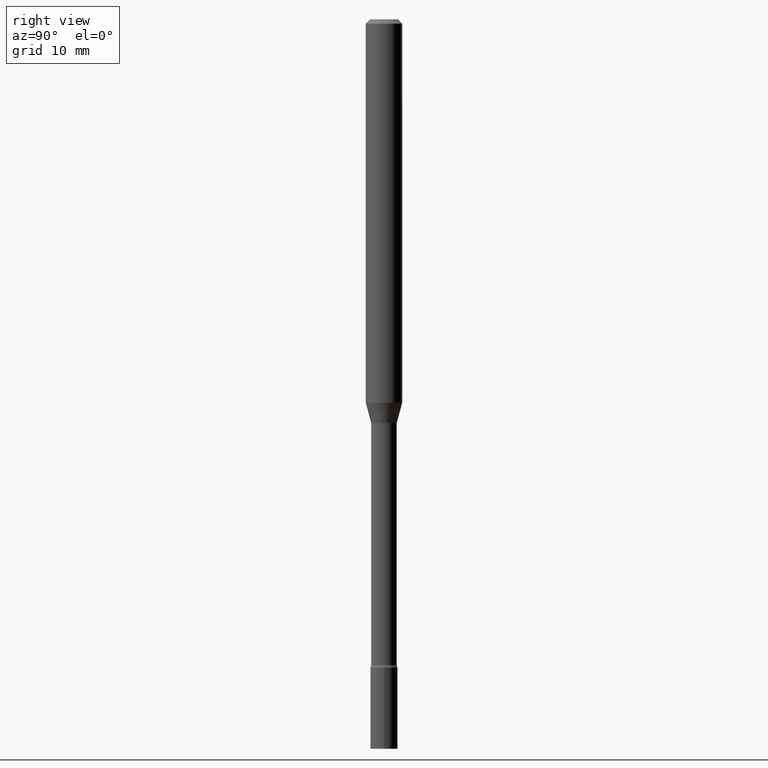
[diagram: clean part render]
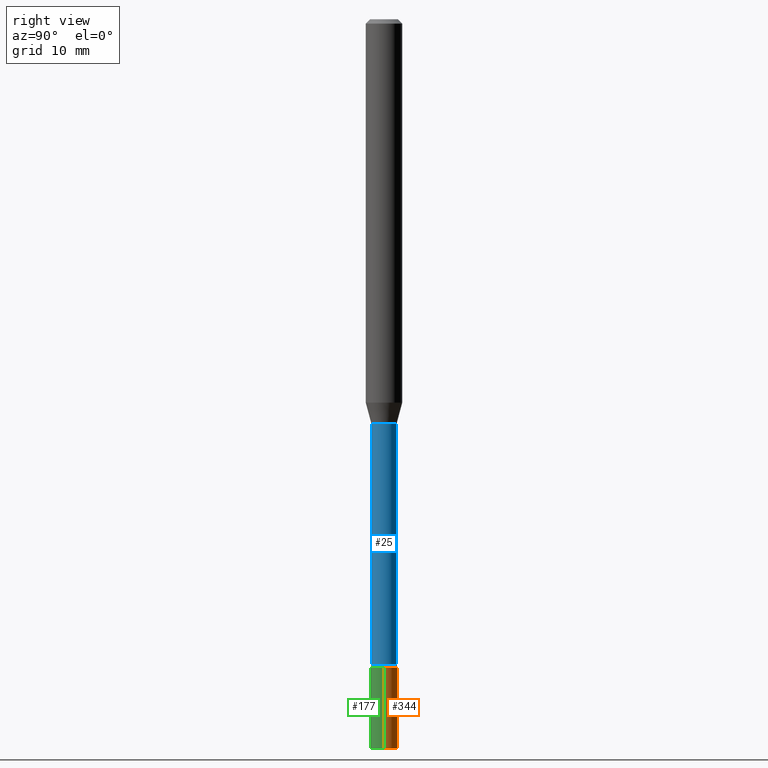
[diagram: same view with three faces highlighted in distinct colors, each labeled with its STEP entity id]
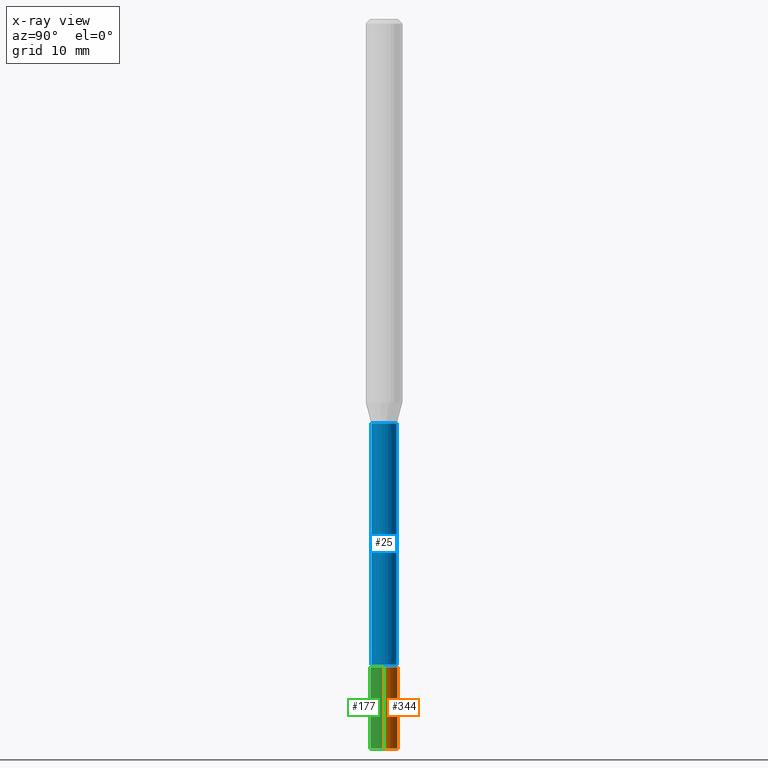
[diagram: x-ray of the same camera — body ghosted, the three highlighted faces saturated]
A machine part, right view with three faces highlighted in distinct colors.
The next image is the same camera in x-ray (body ghosted, the three faces saturated) — at least one of them is partly hidden behind the body in this view.
Their STEP definitions:

[orange] entity #344 — the highlighted cylindrical surface (edge-blend (fillet) strip) has radius 1.1811 mm, axis along (-0, 0, 1).
#15 = EDGE_LOOP ( 'NONE', ( #180, #26, #47, #132 ) ) ;
#21 = DIRECTION ( 'NONE',  ( -2.445468806185136597E-29, 3.491481338843145583E-15, 1.000000000000000000 ) ) ;
#26 = ORIENTED_EDGE ( 'NONE', *, *, #204, .T. ) ;
#47 = ORIENTED_EDGE ( 'NONE', *, *, #279, .F. ) ;
#73 = EDGE_CURVE ( 'NONE', #130, #240, #370, .T. ) ;
#103 = CARTESIAN_POINT ( 'NONE',  ( 5.431386218537188310E-29, -7.754580053570626508E-15, -2.221000000000000085 ) ) ;
#122 = FACE_OUTER_BOUND ( 'NONE', #15, .T. ) ;
#130 = VERTEX_POINT ( 'NONE', #503 ) ;
#132 = ORIENTED_EDGE ( 'NONE', *, *, #440, .F. ) ;
#150 = CARTESIAN_POINT ( 'NONE',  ( 0.04649999999999999967, -3.247077645124114474E-16, 2.267422200745110326E-30 ) ) ;
#155 = VECTOR ( 'NONE', #362, 39.37007874015748143 ) ;
#159 = DIRECTION ( 'NONE',  ( -2.445468806185136877E-29, 3.491481338843145188E-15, 1.000000000000000000 ) ) ;
#167 = CIRCLE ( 'NONE', #363, 0.04649999999999999967 ) ;
#173 = VERTEX_POINT ( 'NONE', #455 ) ;
#180 = ORIENTED_EDGE ( 'NONE', *, *, #73, .T. ) ;
#192 = VECTOR ( 'NONE', #159, 39.37007874015748143 ) ;
#198 = CARTESIAN_POINT ( 'NONE',  ( 0.000000000000000000, 0.000000000000000000, 0.000000000000000000 ) ) ;
#203 = DIRECTION ( 'NONE',  ( 1.000000000000000000, -6.982962677686267499E-15, 4.876176775795936353E-29 ) ) ;
#204 = EDGE_CURVE ( 'NONE', #240, #173, #338, .T. ) ;
#240 = VERTEX_POINT ( 'NONE', #328 ) ;
#261 = AXIS2_PLACEMENT_3D ( 'NONE', #264, #21, #438 ) ;
#264 = CARTESIAN_POINT ( 'NONE',  ( 6.113672015462842613E-29, -8.728703347107864943E-15, -2.500000000000000000 ) ) ;
#275 = LINE ( 'NONE', #150, #155 ) ;
#279 = EDGE_CURVE ( 'NONE', #461, #173, #167, .T. ) ;
#281 = DIRECTION ( 'NONE',  ( -2.445468806185136597E-29, 3.491481338843145583E-15, 1.000000000000000000 ) ) ;
#328 = CARTESIAN_POINT ( 'NONE',  ( -0.04649999999999999967, -7.911239328210799240E-15, -2.500000000000000000 ) ) ;
#338 = LINE ( 'NONE', #378, #192 ) ;
#344 = ADVANCED_FACE ( 'NONE', ( #122 ), #373, .T. ) ;
#362 = DIRECTION ( 'NONE',  ( -2.445468806185136877E-29, 3.491481338843145188E-15, 1.000000000000000000 ) ) ;
#363 = AXIS2_PLACEMENT_3D ( 'NONE', #103, #364, #379 ) ;
#364 = DIRECTION ( 'NONE',  ( -2.445468806185136597E-29, 3.491481338843145583E-15, 1.000000000000000000 ) ) ;
#370 = CIRCLE ( 'NONE', #261, 0.04649999999999999967 ) ;
#373 = CYLINDRICAL_SURFACE ( 'NONE', #457, 0.04649999999999999967 ) ;
#378 = CARTESIAN_POINT ( 'NONE',  ( -0.04649999999999999967, 3.304023721284465841E-16, -2.287304816968531530E-30 ) ) ;
#379 = DIRECTION ( 'NONE',  ( 1.000000000000000000, -6.982962677686260400E-15, 0.000000000000000000 ) ) ;
#438 = DIRECTION ( 'NONE',  ( 1.000000000000000000, -6.982962677686260400E-15, 0.000000000000000000 ) ) ;
#440 = EDGE_CURVE ( 'NONE', #130, #461, #275, .T. ) ;
#447 = CARTESIAN_POINT ( 'NONE',  ( 0.04649999999999999967, -8.079287818083037216E-15, -2.221000000000000085 ) ) ;
#455 = CARTESIAN_POINT ( 'NONE',  ( -0.04649999999999999967, -7.911239328210799240E-15, -2.221000000000000085 ) ) ;
#457 = AXIS2_PLACEMENT_3D ( 'NONE', #198, #281, #203 ) ;
#461 = VERTEX_POINT ( 'NONE', #447 ) ;
#503 = CARTESIAN_POINT ( 'NONE',  ( 0.04649999999999999967, -9.053411111620275650E-15, -2.500000000000000000 ) ) ;

[blue] entity #25 — the highlighted cylindrical surface (edge-blend (fillet) strip) has radius 1.11 mm, axis along (-0, 0, 1).
#6 = EDGE_CURVE ( 'NONE', #290, #146, #49, .T. ) ;
#7 = ORIENTED_EDGE ( 'NONE', *, *, #149, .F. ) ;
#11 = EDGE_LOOP ( 'NONE', ( #162, #64, #412, #7 ) ) ;
#25 = ADVANCED_FACE ( 'NONE', ( #28 ), #182, .T. ) ;
#28 = FACE_OUTER_BOUND ( 'NONE', #11, .T. ) ;
#46 = CARTESIAN_POINT ( 'NONE',  ( 3.105071755271642937E-16, 0.04370000000000007906, -1.525769678600814865E-16 ) ) ;
#49 = CIRCLE ( 'NONE', #435, 0.04370000000000000967 ) ;
#61 = DIRECTION ( 'NONE',  ( -6.982962677686265922E-15, -1.000000000000000000, 3.491463795425199426E-15 ) ) ;
#64 = ORIENTED_EDGE ( 'NONE', *, *, #342, .T. ) ;
#82 = CIRCLE ( 'NONE', #407, 0.04370000000000014845 ) ;
#85 = DIRECTION ( 'NONE',  ( -2.445481056688412626E-29, 3.491463795425199032E-15, 1.000000000000000000 ) ) ;
#109 = DIRECTION ( 'NONE',  ( -6.982962677686266711E-15, -1.000000000000000000, 6.251368406554376995E-15 ) ) ;
#118 = EDGE_CURVE ( 'NONE', #247, #489, #82, .T. ) ;
#124 = CARTESIAN_POINT ( 'NONE',  ( 3.105071755272183306E-16, 0.04369999999999516632, -1.385974787463811309 ) ) ;
#146 = VERTEX_POINT ( 'NONE', #124 ) ;
#149 = EDGE_CURVE ( 'NONE', #247, #290, #241, .T. ) ;
#160 = CARTESIAN_POINT ( 'NONE',  ( 3.204547738278597224E-16, 0.04369999999999241852, -2.212273030308292032 ) ) ;
#162 = ORIENTED_EDGE ( 'NONE', *, *, #118, .T. ) ;
#182 = CYLINDRICAL_SURFACE ( 'NONE', #392, 0.04370000000000007906 ) ;
#188 = CARTESIAN_POINT ( 'NONE',  ( 5.410071787841597970E-29, -7.724071190916995468E-15, -2.212273030308292032 ) ) ;
#196 = VECTOR ( 'NONE', #295, 39.37007874015748143 ) ;
#241 = LINE ( 'NONE', #418, #196 ) ;
#247 = VERTEX_POINT ( 'NONE', #375 ) ;
#283 = DIRECTION ( 'NONE',  ( -2.445481056688412626E-29, 3.491463795425199032E-15, 1.000000000000000000 ) ) ;
#290 = VERTEX_POINT ( 'NONE', #484 ) ;
#295 = DIRECTION ( 'NONE',  ( -2.445481056688412626E-29, 3.491463795425199032E-15, 1.000000000000000000 ) ) ;
#313 = DIRECTION ( 'NONE',  ( -2.445481056688412626E-29, 3.491463795425199032E-15, 1.000000000000000000 ) ) ;
#340 = LINE ( 'NONE', #46, #495 ) ;
#342 = EDGE_CURVE ( 'NONE', #489, #146, #340, .T. ) ;
#375 = CARTESIAN_POINT ( 'NONE',  ( -3.051554690148367184E-16, -0.04370000000000787144, -2.212273030308291588 ) ) ;
#392 = AXIS2_PLACEMENT_3D ( 'NONE', #511, #313, #61 ) ;
#400 = DIRECTION ( 'NONE',  ( -2.445481056688412626E-29, 3.491463795425199032E-15, 1.000000000000000000 ) ) ;
#407 = AXIS2_PLACEMENT_3D ( 'NONE', #188, #283, #492 ) ;
#412 = ORIENTED_EDGE ( 'NONE', *, *, #6, .F. ) ;
#418 = CARTESIAN_POINT ( 'NONE',  ( -3.051554690148903609E-16, -0.04370000000000007906, 1.525769678600814865E-16 ) ) ;
#435 = AXIS2_PLACEMENT_3D ( 'NONE', #470, #400, #109 ) ;
#470 = CARTESIAN_POINT ( 'NONE',  ( 3.389375087790498782E-29, -4.839080791802031638E-15, -1.385974787463811086 ) ) ;
#484 = CARTESIAN_POINT ( 'NONE',  ( -3.051554690148559962E-16, -0.04370000000000485302, -1.385974787463810864 ) ) ;
#489 = VERTEX_POINT ( 'NONE', #160 ) ;
#492 = DIRECTION ( 'NONE',  ( -6.982962677686264344E-15, -1.000000000000000000, 6.251368406554356484E-15 ) ) ;
#495 = VECTOR ( 'NONE', #85, 39.37007874015748143 ) ;
#511 = CARTESIAN_POINT ( 'NONE',  ( 0.000000000000000000, 0.000000000000000000, 0.000000000000000000 ) ) ;

[green] entity #177 — the highlighted cylindrical surface (edge-blend (fillet) strip) has radius 1.1811 mm, axis along (-0, 0, 1).
#10 = AXIS2_PLACEMENT_3D ( 'NONE', #246, #456, #420 ) ;
#59 = EDGE_LOOP ( 'NONE', ( #425, #79, #199, #417 ) ) ;
#70 = EDGE_CURVE ( 'NONE', #240, #130, #354, .T. ) ;
#79 = ORIENTED_EDGE ( 'NONE', *, *, #70, .T. ) ;
#130 = VERTEX_POINT ( 'NONE', #503 ) ;
#148 = DIRECTION ( 'NONE',  ( -2.445468806185136597E-29, 3.491481338843145583E-15, 1.000000000000000000 ) ) ;
#150 = CARTESIAN_POINT ( 'NONE',  ( 0.04649999999999999967, -3.247077645124114474E-16, 2.267422200745110326E-30 ) ) ;
#155 = VECTOR ( 'NONE', #362, 39.37007874015748143 ) ;
#159 = DIRECTION ( 'NONE',  ( -2.445468806185136877E-29, 3.491481338843145188E-15, 1.000000000000000000 ) ) ;
#173 = VERTEX_POINT ( 'NONE', #455 ) ;
#177 = ADVANCED_FACE ( 'NONE', ( #211 ), #206, .T. ) ;
#192 = VECTOR ( 'NONE', #159, 39.37007874015748143 ) ;
#199 = ORIENTED_EDGE ( 'NONE', *, *, #440, .T. ) ;
#204 = EDGE_CURVE ( 'NONE', #240, #173, #338, .T. ) ;
#206 = CYLINDRICAL_SURFACE ( 'NONE', #277, 0.04649999999999999967 ) ;
#211 = FACE_OUTER_BOUND ( 'NONE', #59, .T. ) ;
#235 = CIRCLE ( 'NONE', #10, 0.04649999999999999967 ) ;
#240 = VERTEX_POINT ( 'NONE', #328 ) ;
#246 = CARTESIAN_POINT ( 'NONE',  ( 5.431386218537188310E-29, -7.754580053570626508E-15, -2.221000000000000085 ) ) ;
#275 = LINE ( 'NONE', #150, #155 ) ;
#277 = AXIS2_PLACEMENT_3D ( 'NONE', #386, #291, #343 ) ;
#291 = DIRECTION ( 'NONE',  ( -2.445468806185136597E-29, 3.491481338843145583E-15, 1.000000000000000000 ) ) ;
#328 = CARTESIAN_POINT ( 'NONE',  ( -0.04649999999999999967, -7.911239328210799240E-15, -2.500000000000000000 ) ) ;
#329 = EDGE_CURVE ( 'NONE', #173, #461, #235, .T. ) ;
#338 = LINE ( 'NONE', #378, #192 ) ;
#343 = DIRECTION ( 'NONE',  ( 1.000000000000000000, -6.982962677686267499E-15, 4.876176775795936353E-29 ) ) ;
#354 = CIRCLE ( 'NONE', #493, 0.04649999999999999967 ) ;
#362 = DIRECTION ( 'NONE',  ( -2.445468806185136877E-29, 3.491481338843145188E-15, 1.000000000000000000 ) ) ;
#378 = CARTESIAN_POINT ( 'NONE',  ( -0.04649999999999999967, 3.304023721284465841E-16, -2.287304816968531530E-30 ) ) ;
#386 = CARTESIAN_POINT ( 'NONE',  ( 0.000000000000000000, 0.000000000000000000, 0.000000000000000000 ) ) ;
#417 = ORIENTED_EDGE ( 'NONE', *, *, #329, .F. ) ;
#420 = DIRECTION ( 'NONE',  ( 1.000000000000000000, -6.982962677686260400E-15, 0.000000000000000000 ) ) ;
#425 = ORIENTED_EDGE ( 'NONE', *, *, #204, .F. ) ;
#434 = DIRECTION ( 'NONE',  ( 1.000000000000000000, -6.982962677686260400E-15, 0.000000000000000000 ) ) ;
#440 = EDGE_CURVE ( 'NONE', #130, #461, #275, .T. ) ;
#447 = CARTESIAN_POINT ( 'NONE',  ( 0.04649999999999999967, -8.079287818083037216E-15, -2.221000000000000085 ) ) ;
#455 = CARTESIAN_POINT ( 'NONE',  ( -0.04649999999999999967, -7.911239328210799240E-15, -2.221000000000000085 ) ) ;
#456 = DIRECTION ( 'NONE',  ( -2.445468806185136597E-29, 3.491481338843145583E-15, 1.000000000000000000 ) ) ;
#461 = VERTEX_POINT ( 'NONE', #447 ) ;
#473 = CARTESIAN_POINT ( 'NONE',  ( 6.113672015462842613E-29, -8.728703347107864943E-15, -2.500000000000000000 ) ) ;
#493 = AXIS2_PLACEMENT_3D ( 'NONE', #473, #148, #434 ) ;
#503 = CARTESIAN_POINT ( 'NONE',  ( 0.04649999999999999967, -9.053411111620275650E-15, -2.500000000000000000 ) ) ;